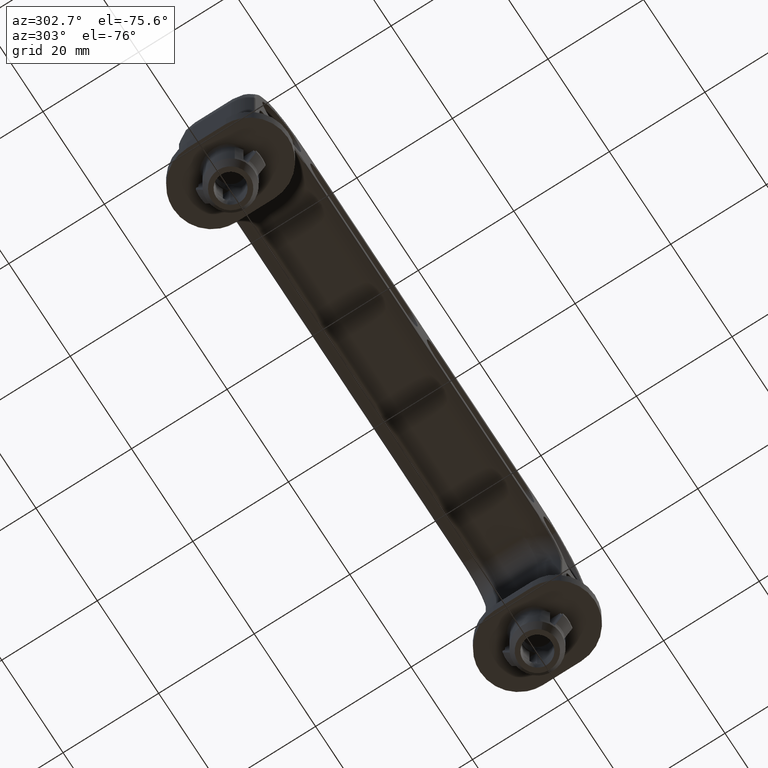
[diagram: clean part render]
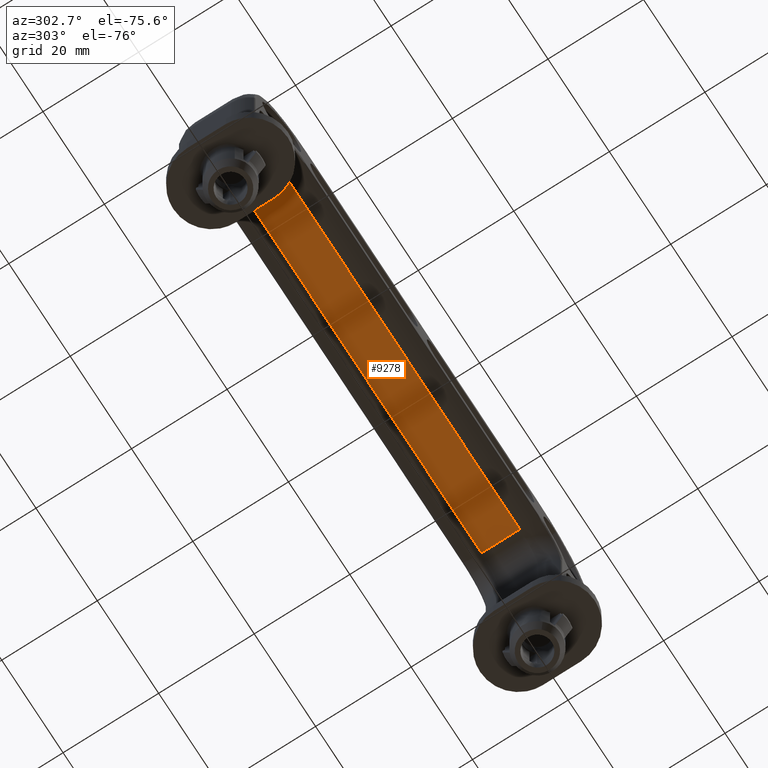
[diagram: same view with one face highlighted and labeled with its STEP entity id]
A machine part, auxiliary view. The second image highlights one B-rep face of the part: STEP entity #9278.
In plain terms, the highlighted face is a freeform B-spline surface patch.
Its self-contained STEP definition (entity closure, byte-faithful):
#8829=CARTESIAN_POINT('',(38.000300000000003,4.0,38.600000000000001));
#8830=VERTEX_POINT('',#8829);
#8872=CARTESIAN_POINT('',(38.000300000000003,-4.000000000000085,38.600000000000001));
#8873=VERTEX_POINT('',#8872);
#8887=CARTESIAN_POINT('',(38.000300000000003,-4.000000000000085,38.600000000000001));
#8888=CARTESIAN_POINT('',(38.000300000000003,4.0,38.600000000000001));
#8889=QUASI_UNIFORM_CURVE('',1,(#8887,#8888),.UNSPECIFIED.,.F.,.U.);
#8890=EDGE_CURVE('',#8873,#8830,#8889,.T.);
#9238=CARTESIAN_POINT('',(-38.0,4.0,38.600000000000001));
#9239=VERTEX_POINT('',#9238);
#9240=CARTESIAN_POINT('',(-38.0,4.0,38.600000000000001));
#9241=CARTESIAN_POINT('',(38.000300000000003,4.0,38.600000000000001));
#9242=QUASI_UNIFORM_CURVE('',1,(#9240,#9241),.UNSPECIFIED.,.F.,.U.);
#9243=EDGE_CURVE('',#9239,#8830,#9242,.T.);
#9257=CARTESIAN_POINT('',(41.796516264569547,-4.399599984494536,38.600000000000001));
#9258=CARTESIAN_POINT('',(-41.796216944065179,-4.399599984494536,38.600000000000001));
#9259=CARTESIAN_POINT('',(41.796516264569547,4.399600199071172,38.600000000000001));
#9260=CARTESIAN_POINT('',(-41.796216944065179,4.399600199071172,38.600000000000001));
#9261=B_SPLINE_SURFACE_WITH_KNOTS('',1,1,((#9257,#9259),(#9258,#9260)),.UNSPECIFIED.,.F.,.F.,.U.,(2,2),(2,2),(0.0,83.592733208634726),(0.0,8.799200183565709),.UNSPECIFIED.);
#9262=ORIENTED_EDGE('',*,*,#9243,.T.);
#9263=ORIENTED_EDGE('',*,*,#8890,.F.);
#9264=CARTESIAN_POINT('',(-38.0,-4.000000000000085,38.600000000000001));
#9265=VERTEX_POINT('',#9264);
#9266=CARTESIAN_POINT('',(-38.0,-4.000000000000085,38.600000000000001));
#9267=CARTESIAN_POINT('',(38.000300000000003,-4.000000000000085,38.600000000000001));
#9268=QUASI_UNIFORM_CURVE('',1,(#9266,#9267),.UNSPECIFIED.,.F.,.U.);
#9269=EDGE_CURVE('',#9265,#8873,#9268,.T.);
#9270=ORIENTED_EDGE('',*,*,#9269,.F.);
#9271=CARTESIAN_POINT('',(-38.0,-4.000000000000085,38.600000000000001));
#9272=CARTESIAN_POINT('',(-38.0,4.0,38.600000000000001));
#9273=QUASI_UNIFORM_CURVE('',1,(#9271,#9272),.UNSPECIFIED.,.F.,.U.);
#9274=EDGE_CURVE('',#9265,#9239,#9273,.T.);
#9275=ORIENTED_EDGE('',*,*,#9274,.T.);
#9276=EDGE_LOOP('',(#9262,#9263,#9270,#9275));
#9277=FACE_OUTER_BOUND('',#9276,.T.);
#9278=ADVANCED_FACE('',(#9277),#9261,.T.);